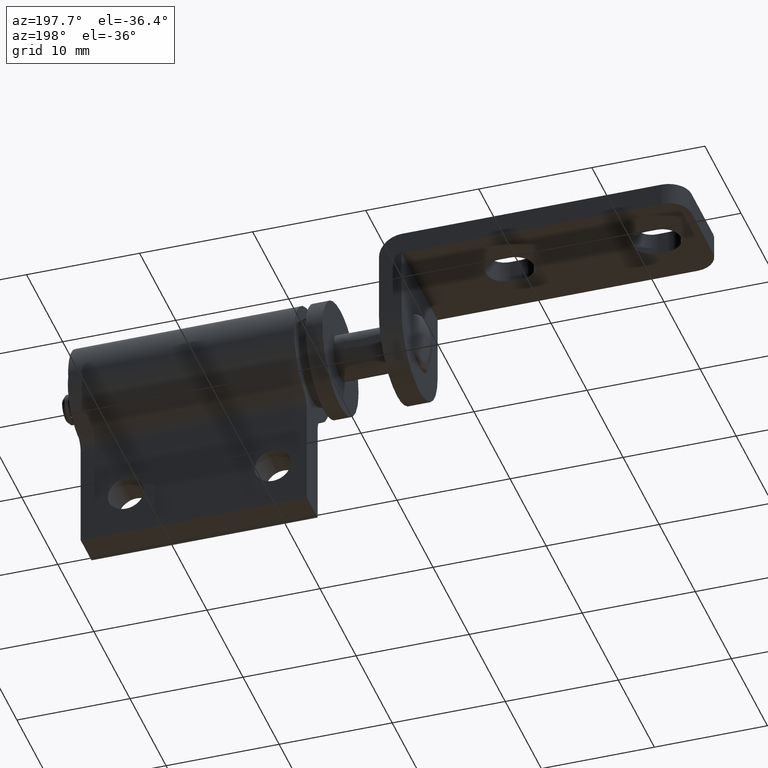
[diagram: clean part render]
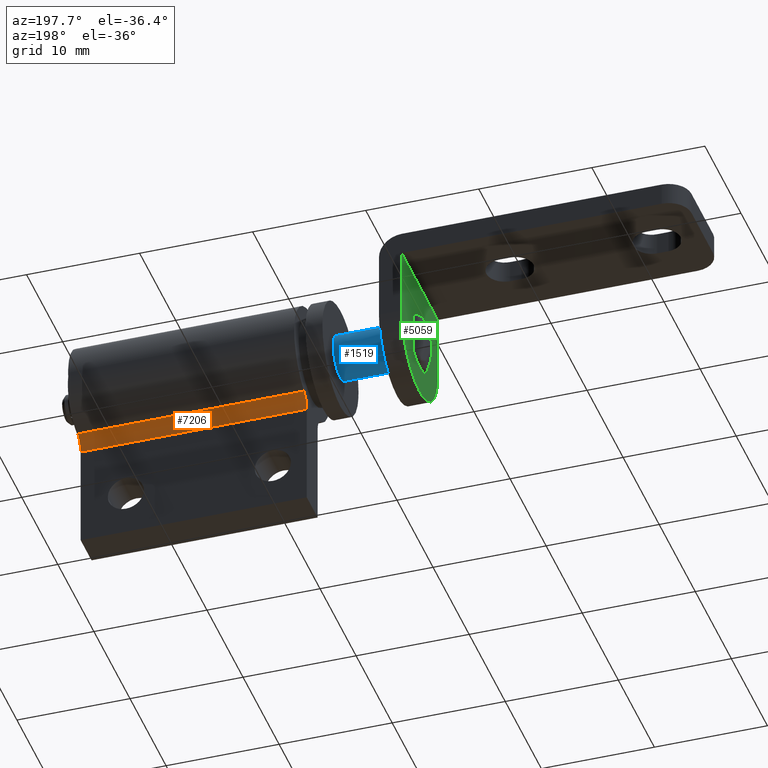
[diagram: same view with three faces highlighted in distinct colors, each labeled with its STEP entity id]
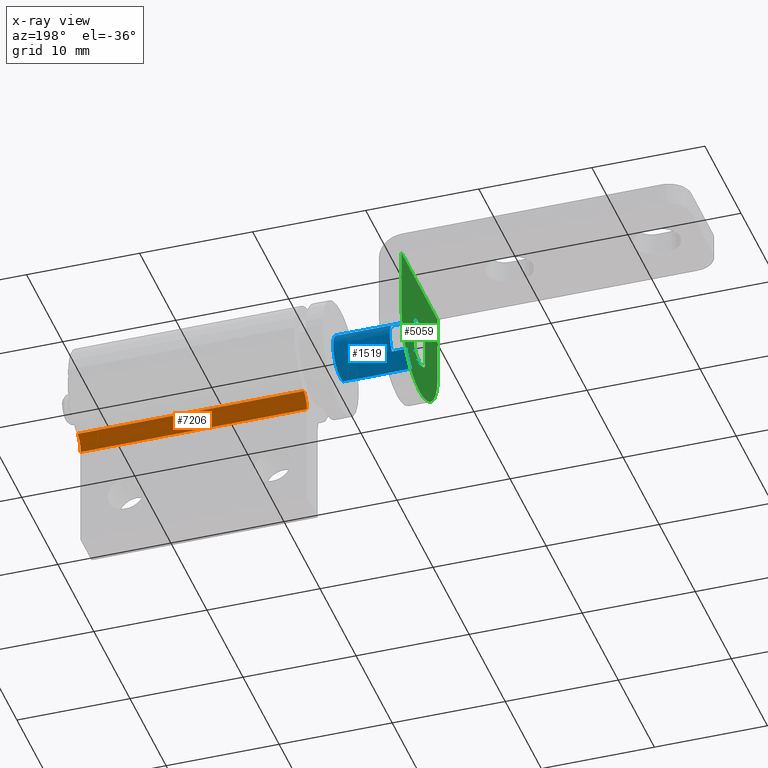
[diagram: x-ray of the same camera — body ghosted, the three highlighted faces saturated]
A machine part, auxiliary view with three faces highlighted in distinct colors.
The next image is the same camera in x-ray (body ghosted, the three faces saturated) — at least one of them is partly hidden behind the body in this view.
Their STEP definitions:

[orange] entity #7206 — the highlighted face is a freeform B-spline surface patch.
#6884=CARTESIAN_POINT('',(27.500000000000000,1.499999999999956,-5.766281297335500));
#6885=VERTEX_POINT('',#6884);
#6891=CARTESIAN_POINT('',(27.500000000000000,2.307692307692285,-4.435600997950394));
#6892=VERTEX_POINT('',#6891);
#6893=CARTESIAN_POINT('',(27.500000000000000,2.307692307692285,-4.435600997950394));
#6894=CARTESIAN_POINT('',(27.499999999999979,2.194246960986824,-4.494583477863906));
#6895=CARTESIAN_POINT('',(27.500000000000050,1.989658925344524,-4.636904074126316));
#6896=CARTESIAN_POINT('',(27.500000000000039,1.764264957564763,-4.895964283548630));
#6897=CARTESIAN_POINT('',(27.499999999999989,1.603327026401307,-5.188528703112058));
#6898=CARTESIAN_POINT('',(27.499999999999911,1.517460670328752,-5.476459784068423));
#6899=CARTESIAN_POINT('',(27.500000000000199,1.499998541510455,-5.681043598111240));
#6900=CARTESIAN_POINT('',(27.500000000000000,1.499999999999956,-5.766281297335500));
#6901=B_SPLINE_CURVE_WITH_KNOTS('',3,(#6893,#6894,#6895,#6896,#6897,#6898,#6899,#6900),.UNSPECIFIED.,.F.,.U.,(4,1,1,1,1,4),(0.000000041447560,0.383582445324145,0.741597782712064,1.022880408639564,1.380901650047113,1.636621350202508),.UNSPECIFIED.);
#6902=EDGE_CURVE('',#6892,#6885,#6901,.T.);
#7112=CARTESIAN_POINT('',(7.500000000000000,2.307692307692285,-4.435600997950394));
#7113=VERTEX_POINT('',#7112);
#7163=CARTESIAN_POINT('',(27.500000000000000,2.307692307692285,-4.435600997950394));
#7164=CARTESIAN_POINT('',(7.500000000000000,2.307692307692285,-4.435600997950394));
#7165=QUASI_UNIFORM_CURVE('',1,(#7163,#7164),.UNSPECIFIED.,.F.,.U.);
#7166=EDGE_CURVE('',#6892,#7113,#7165,.T.);
#7171=CARTESIAN_POINT('',(28.0,2.319330897517431,-4.429610218526047));
#7172=CARTESIAN_POINT('',(6.987499999999997,2.319330897517431,-4.429610218526047));
#7173=CARTESIAN_POINT('',(28.0,1.451614672104238,-4.871474813133411));
#7174=CARTESIAN_POINT('',(6.987499999999997,1.451614672104238,-4.871474813133411));
#7175=CARTESIAN_POINT('',(27.999999999999996,1.502010241498183,-5.843913013945322));
#7176=CARTESIAN_POINT('',(6.987499999999997,1.502010241498183,-5.843913013945322));
#7184=(BOUNDED_SURFACE()B_SPLINE_SURFACE(1,2,((#7171,#7173,#7175),(#7172,#7174,#7176)),.UNSPECIFIED.,.F.,.F.,.U.)B_SPLINE_SURFACE_WITH_KNOTS((2,2),(3,3),(0.0,21.012499999999999),(0.0,0.999682961249817),.UNSPECIFIED.)GEOMETRIC_REPRESENTATION_ITEM()RATIONAL_B_SPLINE_SURFACE(((1.0,0.838721715626930,0.999897737068582),(1.0,0.838721715626930,0.999897737068582)))REPRESENTATION_ITEM('')SURFACE());
#7185=CARTESIAN_POINT('',(7.500000000000000,1.499999999999956,-5.766281297335500));
#7186=VERTEX_POINT('',#7185);
#7187=CARTESIAN_POINT('',(7.500000000000000,2.307692307692285,-4.435600997950394));
#7188=CARTESIAN_POINT('',(7.499999999999996,2.194257809183904,-4.494592536597200));
#7189=CARTESIAN_POINT('',(7.500000000000009,1.961395499872916,-4.656490056005280));
#7190=CARTESIAN_POINT('',(7.500000000000005,1.705916404996456,-4.971189873368651));
#7191=CARTESIAN_POINT('',(7.500000000000012,1.538592324281520,-5.357153591218547));
#7192=CARTESIAN_POINT('',(7.500000000000013,1.499946851677897,-5.621370095330104));
#7193=CARTESIAN_POINT('',(7.500000000000000,1.499999999999956,-5.766281297335500));
#7194=B_SPLINE_CURVE_WITH_KNOTS('',3,(#7187,#7188,#7189,#7190,#7191,#7192,#7193),.UNSPECIFIED.,.F.,.U.,(4,1,1,1,4),(0.000000041447560,0.383582445324145,0.843870429444806,1.201893099701705,1.636621350202508),.UNSPECIFIED.);
#7195=EDGE_CURVE('',#7113,#7186,#7194,.T.);
#7196=ORIENTED_EDGE('',*,*,#7195,.F.);
#7197=ORIENTED_EDGE('',*,*,#7166,.F.);
#7198=ORIENTED_EDGE('',*,*,#6902,.T.);
#7199=CARTESIAN_POINT('',(27.500000000000000,1.499999999999956,-5.766281297335500));
#7200=CARTESIAN_POINT('',(7.500000000000000,1.499999999999956,-5.766281297335500));
#7201=QUASI_UNIFORM_CURVE('',1,(#7199,#7200),.UNSPECIFIED.,.F.,.U.);
#7202=EDGE_CURVE('',#6885,#7186,#7201,.T.);
#7203=ORIENTED_EDGE('',*,*,#7202,.T.);
#7204=EDGE_LOOP('',(#7196,#7197,#7198,#7203));
#7205=FACE_OUTER_BOUND('',#7204,.T.);
#7206=ADVANCED_FACE('',(#7205),#7184,.F.);

[blue] entity #1519 — the highlighted face is a freeform B-spline surface patch.
#1281=CARTESIAN_POINT('',(5.0,1.999999999999774,-0.000000708338455));
#1282=VERTEX_POINT('',#1281);
#1283=CARTESIAN_POINT('',(5.0,0.0,-1.999999999999900));
#1284=VERTEX_POINT('',#1283);
#1285=CARTESIAN_POINT('',(5.0,1.999999999999774,-0.000000708338455));
#1286=CARTESIAN_POINT('',(5.000000000000022,2.000206003637455,-0.245470934653680));
#1287=CARTESIAN_POINT('',(4.999999999999939,1.926774780359492,-0.638006242278923));
#1288=CARTESIAN_POINT('',(5.000000000000074,1.687873918362546,-1.098298649089756));
#1289=CARTESIAN_POINT('',(4.999999999999925,1.465426720279192,-1.372749463300585));
#1290=CARTESIAN_POINT('',(5.000000000000023,1.216419349580358,-1.598433308358692));
#1291=CARTESIAN_POINT('',(5.000000000000060,0.906355046174628,-1.800193857387525));
#1292=CARTESIAN_POINT('',(4.999999999999930,0.482675770432375,-1.960631275593912));
#1293=CARTESIAN_POINT('',(5.000000000000064,0.163625379845782,-2.000038143212982));
#1294=CARTESIAN_POINT('',(5.0,0.0,-1.999999999999900));
#1295=B_SPLINE_CURVE_WITH_KNOTS('',3,(#1285,#1286,#1287,#1288,#1289,#1290,#1291,#1292,#1293,#1294),.UNSPECIFIED.,.F.,.U.,(4,1,1,1,1,1,1,4),(0.000000070415433,0.736314451717281,1.178109217447977,1.546283478576109,1.791692407955291,2.184400083086114,2.650742918045118,3.141611966522427),.UNSPECIFIED.);
#1296=EDGE_CURVE('',#1282,#1284,#1295,.T.);
#1298=CARTESIAN_POINT('',(5.000000000000084,0.750221497411521,1.853959873409904));
#1299=VERTEX_POINT('',#1298);
#1300=CARTESIAN_POINT('',(5.000000000000084,0.750221497411521,1.853959873409904));
#1301=CARTESIAN_POINT('',(5.000000000000082,0.967964171123581,1.766056117421126));
#1302=CARTESIAN_POINT('',(5.000000000000081,1.254752950961681,1.585667724098671));
#1303=CARTESIAN_POINT('',(5.000000000000044,1.553478149876304,1.271257794017465));
#1304=CARTESIAN_POINT('',(5.000000000000060,1.752732998891964,0.987229192818830));
#1305=CARTESIAN_POINT('',(5.000000000000009,1.942993316128931,0.568370701071262));
#1306=CARTESIAN_POINT('',(5.000000000000025,2.000120816199227,0.210085463036076));
#1307=CARTESIAN_POINT('',(5.0,1.999999999999774,-0.000000708338455));
#1308=B_SPLINE_CURVE_WITH_KNOTS('',3,(#1300,#1301,#1302,#1303,#1304,#1305,#1306,#1307),.UNSPECIFIED.,.F.,.U.,(4,1,1,1,1,4),(0.000000036201766,0.704364313588589,1.000947631887976,1.297498451929531,1.742373093156791,2.372594710390934),.UNSPECIFIED.);
#1309=EDGE_CURVE('',#1299,#1282,#1308,.T.);
#1335=CARTESIAN_POINT('',(4.999999999999952,-0.750221497406529,-1.853959873411929));
#1336=VERTEX_POINT('',#1335);
#1348=CARTESIAN_POINT('',(5.0,0.0,-1.999999999999900));
#1349=CARTESIAN_POINT('',(4.999999999999998,-0.256366654414860,-2.000134541404091));
#1350=CARTESIAN_POINT('',(4.999999999999962,-0.512631284125625,-1.950278850750069));
#1351=CARTESIAN_POINT('',(4.999999999999952,-0.750221497406529,-1.853959873411929));
#1352=B_SPLINE_CURVE_WITH_KNOTS('',3,(#1348,#1349,#1350,#1351),.UNSPECIFIED.,.F.,.U.,(4,4),(3.982034E-009,0.769037140904387),.UNSPECIFIED.);
#1353=EDGE_CURVE('',#1284,#1336,#1352,.T.);
#1379=CARTESIAN_POINT('',(-2.000000000000001,0.750221445041904,1.853960050864610));
#1380=VERTEX_POINT('',#1379);
#1381=CARTESIAN_POINT('',(5.000000000000084,0.750221497411521,1.853959873409904));
#1382=CARTESIAN_POINT('',(-2.000000000000001,0.750221445041904,1.853960050864610));
#1383=QUASI_UNIFORM_CURVE('',1,(#1381,#1382),.UNSPECIFIED.,.F.,.U.);
#1384=EDGE_CURVE('',#1299,#1380,#1383,.T.);
#1428=CARTESIAN_POINT('',(-2.0,-0.750221431791215,-1.853960018706950));
#1429=VERTEX_POINT('',#1428);
#1437=CARTESIAN_POINT('',(4.999999999999952,-0.750221497406529,-1.853959873411929));
#1438=CARTESIAN_POINT('',(-2.0,-0.750221431791215,-1.853960018706950));
#1439=QUASI_UNIFORM_CURVE('',1,(#1437,#1438),.UNSPECIFIED.,.F.,.U.);
#1440=EDGE_CURVE('',#1336,#1429,#1439,.T.);
#1445=CARTESIAN_POINT('',(5.175000000000000,0.750221490913974,1.853960008891888));
#1446=CARTESIAN_POINT('',(5.175000000000001,2.604181499805862,1.103738517977914));
#1447=CARTESIAN_POINT('',(5.175000000000000,1.853960008891888,-0.750221490913974));
#1448=CARTESIAN_POINT('',(5.175000000000001,1.103738517977914,-2.604181499805862));
#1449=CARTESIAN_POINT('',(5.175000000000000,-0.750221490913974,-1.853960008891888));
#1450=CARTESIAN_POINT('',(-2.179375000000000,0.750221490913974,1.853960008891888));
#1451=CARTESIAN_POINT('',(-2.179375000000000,2.604181499805862,1.103738517977914));
#1452=CARTESIAN_POINT('',(-2.179375000000000,1.853960008891888,-0.750221490913974));
#1453=CARTESIAN_POINT('',(-2.179375000000000,1.103738517977914,-2.604181499805862));
#1454=CARTESIAN_POINT('',(-2.179375000000000,-0.750221490913974,-1.853960008891888));
#1462=(BOUNDED_SURFACE()B_SPLINE_SURFACE(2,1,((#1445,#1450),(#1446,#1451),(#1447,#1452),(#1448,#1453),(#1449,#1454)),.UNSPECIFIED.,.F.,.F.,.U.)B_SPLINE_SURFACE_WITH_KNOTS((3,2,3),(2,2),(0.0,3.313708498984594,6.627416997969188),(0.0,7.354375000000000),.UNSPECIFIED.)GEOMETRIC_REPRESENTATION_ITEM()RATIONAL_B_SPLINE_SURFACE(((1.0,1.0),(0.707106781186548,0.707106781186548),(1.0,1.0),(0.707106781186548,0.707106781186548),(1.0,1.0)))REPRESENTATION_ITEM('')SURFACE());
#1463=ORIENTED_EDGE('',*,*,#1353,.T.);
#1464=ORIENTED_EDGE('',*,*,#1440,.T.);
#1465=CARTESIAN_POINT('',(-2.0,1.450000000000000,-1.377498000000000));
#1466=VERTEX_POINT('',#1465);
#1467=CARTESIAN_POINT('',(-2.0,1.450000000000000,-1.377498000000000));
#1468=CARTESIAN_POINT('',(-2.0,1.321377045850667,-1.512977963497737));
#1469=CARTESIAN_POINT('',(-2.000000000000004,1.084918330524267,-1.700547226071174));
#1470=CARTESIAN_POINT('',(-1.999999999999996,0.667872498950404,-1.900321709465580));
#1471=CARTESIAN_POINT('',(-2.000000000000003,0.229328837467518,-2.008298437216766));
#1472=CARTESIAN_POINT('',(-2.0,-0.273068469539215,-2.002782818571090));
#1473=CARTESIAN_POINT('',(-1.999999999999994,-0.600155976154125,-1.914717723108369));
#1474=CARTESIAN_POINT('',(-2.0,-0.750221431791215,-1.853960018706950));
#1475=B_SPLINE_CURVE_WITH_KNOTS('',3,(#1467,#1468,#1469,#1470,#1471,#1472,#1473,#1474),.UNSPECIFIED.,.F.,.U.,(4,1,1,1,1,4),(0.000000029806388,0.560422211500709,0.896682141447962,1.382364136082245,1.905439433968278,2.391135845357502),.UNSPECIFIED.);
#1476=EDGE_CURVE('',#1466,#1429,#1475,.T.);
#1477=ORIENTED_EDGE('',*,*,#1476,.F.);
#1478=CARTESIAN_POINT('',(0.0,1.450000000000000,-1.377498000000000));
#1479=VERTEX_POINT('',#1478);
#1480=CARTESIAN_POINT('',(-2.0,1.450000000000000,-1.377498000000000));
#1481=CARTESIAN_POINT('',(0.0,1.450000000000000,-1.377498000000000));
#1482=QUASI_UNIFORM_CURVE('',1,(#1480,#1481),.UNSPECIFIED.,.F.,.U.);
#1483=EDGE_CURVE('',#1466,#1479,#1482,.T.);
#1484=ORIENTED_EDGE('',*,*,#1483,.T.);
#1485=CARTESIAN_POINT('',(0.0,1.450000000000000,1.377497731395444));
#1486=VERTEX_POINT('',#1485);
#1487=CARTESIAN_POINT('',(0.0,1.450000000000000,1.377497731395444));
#1488=CARTESIAN_POINT('',(0.0,1.602754514067611,1.216928885865829));
#1489=CARTESIAN_POINT('',(0.0,1.782058998672458,0.950761592618147));
#1490=CARTESIAN_POINT('',(0.0,1.928639409031375,0.556605789372066));
#1491=CARTESIAN_POINT('',(0.0,1.994137075480029,0.245930013607978));
#1492=CARTESIAN_POINT('',(0.0,2.009330989906256,-0.119251315903869));
#1493=CARTESIAN_POINT('',(0.0,1.944515568122718,-0.536094889597951));
#1494=CARTESIAN_POINT('',(0.0,1.767172618118214,-0.980211256346253));
#1495=CARTESIAN_POINT('',(0.0,1.569958259588808,-1.251297509759975));
#1496=CARTESIAN_POINT('',(0.0,1.450000000000000,-1.377498000000000));
#1497=B_SPLINE_CURVE_WITH_KNOTS('',3,(#1487,#1488,#1489,#1490,#1491,#1492,#1493,#1494,#1495,#1496),.UNSPECIFIED.,.F.,.U.,(4,1,1,1,1,1,1,4),(0.000000063608448,0.664793904166757,0.949712257862116,1.258369621639943,1.614490208788750,2.041870030935117,2.516728726002531,3.039065816811061),.UNSPECIFIED.);
#1498=EDGE_CURVE('',#1486,#1479,#1497,.T.);
#1499=ORIENTED_EDGE('',*,*,#1498,.F.);
#1500=CARTESIAN_POINT('',(-2.0,1.450000000000000,1.377498000000000));
#1501=VERTEX_POINT('',#1500);
#1502=CARTESIAN_POINT('',(-2.0,1.450000000000000,1.377498000000000));
#1503=CARTESIAN_POINT('',(0.0,1.450000000000000,1.377497731395444));
#1504=QUASI_UNIFORM_CURVE('',1,(#1502,#1503),.UNSPECIFIED.,.F.,.U.);
#1505=EDGE_CURVE('',#1501,#1486,#1504,.T.);
#1506=ORIENTED_EDGE('',*,*,#1505,.F.);
#1507=CARTESIAN_POINT('',(-2.000000000000001,0.750221445041904,1.853960050864610));
#1508=CARTESIAN_POINT('',(-2.000000000000006,1.013942894358432,1.747515621038370));
#1509=CARTESIAN_POINT('',(-1.999999999999998,1.254277307700730,1.583813560120358));
#1510=CARTESIAN_POINT('',(-2.0,1.450000000000000,1.377498000000000));
#1511=B_SPLINE_CURVE_WITH_KNOTS('',3,(#1507,#1508,#1509,#1510),.UNSPECIFIED.,.F.,.U.,(4,4),(5.314814E-009,0.853042525569352),.UNSPECIFIED.);
#1512=EDGE_CURVE('',#1380,#1501,#1511,.T.);
#1513=ORIENTED_EDGE('',*,*,#1512,.F.);
#1514=ORIENTED_EDGE('',*,*,#1384,.F.);
#1515=ORIENTED_EDGE('',*,*,#1309,.T.);
#1516=ORIENTED_EDGE('',*,*,#1296,.T.);
#1517=EDGE_LOOP('',(#1463,#1464,#1477,#1484,#1499,#1506,#1513,#1514,#1515,#1516));
#1518=FACE_OUTER_BOUND('',#1517,.T.);
#1519=ADVANCED_FACE('',(#1518),#1462,.T.);

[green] entity #5059 — the highlighted face is a freeform B-spline surface patch.
#4952=CARTESIAN_POINT('',(-2.0,-5.499499980618361,6.549449978679864));
#4953=CARTESIAN_POINT('',(-2.0,5.499500248838891,6.549449978679864));
#4954=CARTESIAN_POINT('',(-2.0,-5.499499980618361,-5.549450273722837));
#4955=CARTESIAN_POINT('',(-2.0,5.499500248838891,-5.549450273722837));
#4956=B_SPLINE_SURFACE_WITH_KNOTS('',1,1,((#4952,#4954),(#4953,#4955)),.UNSPECIFIED.,.F.,.F.,.U.,(2,2),(2,2),(0.0,10.999000229457250),(0.0,12.098900252402700),.UNSPECIFIED.);
#4957=CARTESIAN_POINT('',(-2.0,4.999999999999920,0.000000872664625));
#4958=VERTEX_POINT('',#4957);
#4959=CARTESIAN_POINT('',(-2.0,4.999999999999890,6.0));
#4960=VERTEX_POINT('',#4959);
#4961=CARTESIAN_POINT('',(-2.0,4.999999999999920,0.000000872664625));
#4962=CARTESIAN_POINT('',(-2.0,4.999999999999890,6.0));
#4963=QUASI_UNIFORM_CURVE('',1,(#4961,#4962),.UNSPECIFIED.,.F.,.U.);
#4964=EDGE_CURVE('',#4958,#4960,#4963,.T.);
#4965=ORIENTED_EDGE('',*,*,#4964,.F.);
#4966=CARTESIAN_POINT('',(-2.0,0.000000431528871,-4.999999999999981));
#4967=VERTEX_POINT('',#4966);
#4968=CARTESIAN_POINT('',(-2.0,0.000000431528871,-4.999999999999981));
#4969=CARTESIAN_POINT('',(-1.999999999999999,0.347704104205985,-5.000040154713774));
#4970=CARTESIAN_POINT('',(-2.000000000000003,1.063551161143387,-4.925057629495290));
#4971=CARTESIAN_POINT('',(-1.999999999999998,2.060070119260930,-4.595869272856593));
#4972=CARTESIAN_POINT('',(-2.000000000000001,2.983397292532335,-4.057732026263989));
#4973=CARTESIAN_POINT('',(-1.999999999999995,3.684763098228291,-3.422038753258964));
#4974=CARTESIAN_POINT('',(-1.999999999999998,4.293267404853944,-2.622271607822497));
#4975=CARTESIAN_POINT('',(-1.999999999999996,4.695692675807625,-1.810490097087340));
#4976=CARTESIAN_POINT('',(-1.999999999999982,4.947108948684231,-0.879461855827884));
#4977=CARTESIAN_POINT('',(-2.000000000000039,5.000035795895883,-0.306793661148334));
#4978=CARTESIAN_POINT('',(-2.0,4.999999999999920,0.000000872664625));
#4979=B_SPLINE_CURVE_WITH_KNOTS('',3,(#4968,#4969,#4970,#4971,#4972,#4973,#4974,#4975,#4976,#4977,#4978),.UNSPECIFIED.,.F.,.U.,(4,1,1,1,1,1,1,1,4),(0.000000026156309,1.043112784165128,2.147587242035510,3.129349550168918,4.233794443469989,4.970120237255419,6.135962123009764,6.933649515514529,7.854031163008993),.UNSPECIFIED.);
#4980=EDGE_CURVE('',#4967,#4958,#4979,.T.);
#4981=ORIENTED_EDGE('',*,*,#4980,.F.);
#4982=CARTESIAN_POINT('',(-2.0,-5.000000000000290,-3.061516E-016));
#4983=VERTEX_POINT('',#4982);
#4984=CARTESIAN_POINT('',(-2.0,-5.000000000000290,-3.061516E-016));
#4985=CARTESIAN_POINT('',(-2.000000000000002,-5.000034970919830,-0.306796016500907));
#4986=CARTESIAN_POINT('',(-1.999999999999998,-4.950892800789992,-0.838562355365161));
#4987=CARTESIAN_POINT('',(-2.000000000000002,-4.751881238500541,-1.612888512373067));
#4988=CARTESIAN_POINT('',(-1.999999999999997,-4.433179778896367,-2.369221957367595));
#4989=CARTESIAN_POINT('',(-2.000000000000001,-3.951264400822277,-3.109979153036774));
#4990=CARTESIAN_POINT('',(-2.000000000000032,-3.285966510035654,-3.808780190472614));
#4991=CARTESIAN_POINT('',(-1.999999999999943,-2.566140961401206,-4.322372797361456));
#4992=CARTESIAN_POINT('',(-2.000000000000019,-1.843066874796174,-4.664307936936134));
#4993=CARTESIAN_POINT('',(-1.999999999999990,-1.022607428591110,-4.924259152956889));
#4994=CARTESIAN_POINT('',(-2.000000000000006,-0.409073730988348,-5.000110572440910));
#4995=CARTESIAN_POINT('',(-2.0,0.000000431528871,-4.999999999999981));
#4996=B_SPLINE_CURVE_WITH_KNOTS('',3,(#4984,#4985,#4986,#4987,#4988,#4989,#4990,#4991,#4992,#4993,#4994,#4995),.UNSPECIFIED.,.F.,.U.,(4,1,1,1,1,1,1,1,1,4),(0.000000026156964,0.920385282201424,1.595349975105084,2.393030531266091,3.374789694182204,4.233794440550982,5.276920718865366,6.013243886355363,6.626841264589626,7.854031157594540),.UNSPECIFIED.);
#4997=EDGE_CURVE('',#4983,#4967,#4996,.T.);
#4998=ORIENTED_EDGE('',*,*,#4997,.F.);
#4999=CARTESIAN_POINT('',(-2.0,-5.000000000000290,6.0));
#5000=VERTEX_POINT('',#4999);
#5001=CARTESIAN_POINT('',(-2.0,-5.000000000000290,6.0));
#5002=CARTESIAN_POINT('',(-2.0,-5.000000000000290,-3.061516E-016));
#5003=QUASI_UNIFORM_CURVE('',1,(#5001,#5002),.UNSPECIFIED.,.F.,.U.);
#5004=EDGE_CURVE('',#5000,#4983,#5003,.T.);
#5005=ORIENTED_EDGE('',*,*,#5004,.F.);
#5006=CARTESIAN_POINT('',(-2.0,-5.000000000000290,6.0));
#5007=CARTESIAN_POINT('',(-2.0,4.999999999999890,6.0));
#5008=QUASI_UNIFORM_CURVE('',1,(#5006,#5007),.UNSPECIFIED.,.F.,.U.);
#5009=EDGE_CURVE('',#5000,#4960,#5008,.T.);
#5010=ORIENTED_EDGE('',*,*,#5009,.T.);
#5011=EDGE_LOOP('',(#4965,#4981,#4998,#5005,#5010));
#5012=FACE_OUTER_BOUND('',#5011,.T.);
#5013=CARTESIAN_POINT('',(-2.0,-1.475000000000080,-1.387443692551102));
#5014=VERTEX_POINT('',#5013);
#5015=CARTESIAN_POINT('',(-2.0,1.474999999999910,-1.387443692551102));
#5016=VERTEX_POINT('',#5015);
#5017=CARTESIAN_POINT('',(-2.0,-1.475000000000080,-1.387443692551102));
#5018=CARTESIAN_POINT('',(-2.000000000000006,-1.321767089111801,-1.550513740280429));
#5019=CARTESIAN_POINT('',(-1.999999999999992,-0.981395288730152,-1.809176846591379));
#5020=CARTESIAN_POINT('',(-2.000000000000005,-0.439718380626061,-1.999447445841849));
#5021=CARTESIAN_POINT('',(-1.999999999999999,0.095174847160788,-2.043880883426222));
#5022=CARTESIAN_POINT('',(-1.999999999999985,0.566608791290127,-1.965011354323507));
#5023=CARTESIAN_POINT('',(-2.000000000000045,1.058954658598426,-1.752181416378329));
#5024=CARTESIAN_POINT('',(-1.999999999999929,1.333547682635949,-1.537961228434236));
#5025=CARTESIAN_POINT('',(-2.0,1.474999999999910,-1.387443692551102));
#5026=B_SPLINE_CURVE_WITH_KNOTS('',3,(#5017,#5018,#5019,#5020,#5021,#5022,#5023,#5024,#5025),.UNSPECIFIED.,.F.,.U.,(4,1,1,1,1,1,4),(0.000000075460641,0.671269483771049,1.265095099609497,1.703985567985367,2.271995024762940,2.685096354165275,3.304727559544669),.UNSPECIFIED.);
#5027=EDGE_CURVE('',#5014,#5016,#5026,.T.);
#5028=ORIENTED_EDGE('',*,*,#5027,.T.);
#5029=CARTESIAN_POINT('',(-2.0,1.474999999999910,1.387443692550988));
#5030=VERTEX_POINT('',#5029);
#5031=CARTESIAN_POINT('',(-2.0,1.474999999999910,-1.387443692551102));
#5032=CARTESIAN_POINT('',(-2.0,1.474999999999910,1.387443692550988));
#5033=QUASI_UNIFORM_CURVE('',1,(#5031,#5032),.UNSPECIFIED.,.F.,.U.);
#5034=EDGE_CURVE('',#5016,#5030,#5033,.T.);
#5035=ORIENTED_EDGE('',*,*,#5034,.T.);
#5036=CARTESIAN_POINT('',(-2.0,-1.475000000000000,1.387443692551104));
#5037=VERTEX_POINT('',#5036);
#5038=CARTESIAN_POINT('',(-2.0,1.474999999999910,1.387443692550988));
#5039=CARTESIAN_POINT('',(-2.000000000000001,1.362994497813117,1.506575205089301));
#5040=CARTESIAN_POINT('',(-1.999999999999997,1.149857552435311,1.684142673572464));
#5041=CARTESIAN_POINT('',(-2.0,0.776673832040980,1.883615231250607));
#5042=CARTESIAN_POINT('',(-2.000000000000003,0.396216901774592,2.001156209003591));
#5043=CARTESIAN_POINT('',(-2.0,-0.008757018956078,2.037382826044859));
#5044=CARTESIAN_POINT('',(-2.000000000000009,-0.404147402651992,1.996913478340397));
#5045=CARTESIAN_POINT('',(-1.999999999999961,-0.801681434028753,1.876906683168873));
#5046=CARTESIAN_POINT('',(-2.000000000000109,-1.172135732362015,1.669678353715917));
#5047=CARTESIAN_POINT('',(-1.999999999999877,-1.386560028077719,1.481478503906599));
#5048=CARTESIAN_POINT('',(-2.0,-1.475000000000000,1.387443692551104));
#5049=B_SPLINE_CURVE_WITH_KNOTS('',3,(#5038,#5039,#5040,#5041,#5042,#5043,#5044,#5045,#5046,#5047,#5048),.UNSPECIFIED.,.F.,.U.,(4,1,1,1,1,1,1,1,4),(0.000000075460678,0.490541117440170,0.826182059086122,1.265095099609504,1.678160751036117,2.039636035452463,2.452726821779359,2.917455343473989,3.304727559544658),.UNSPECIFIED.);
#5050=EDGE_CURVE('',#5030,#5037,#5049,.T.);
#5051=ORIENTED_EDGE('',*,*,#5050,.T.);
#5052=CARTESIAN_POINT('',(-2.0,-1.475000000000000,1.387443692551104));
#5053=CARTESIAN_POINT('',(-2.0,-1.475000000000080,-1.387443692551102));
#5054=QUASI_UNIFORM_CURVE('',1,(#5052,#5053),.UNSPECIFIED.,.F.,.U.);
#5055=EDGE_CURVE('',#5037,#5014,#5054,.T.);
#5056=ORIENTED_EDGE('',*,*,#5055,.T.);
#5057=EDGE_LOOP('',(#5028,#5035,#5051,#5056));
#5058=FACE_BOUND('',#5057,.T.);
#5059=ADVANCED_FACE('',(#5012,#5058),#4956,.T.);